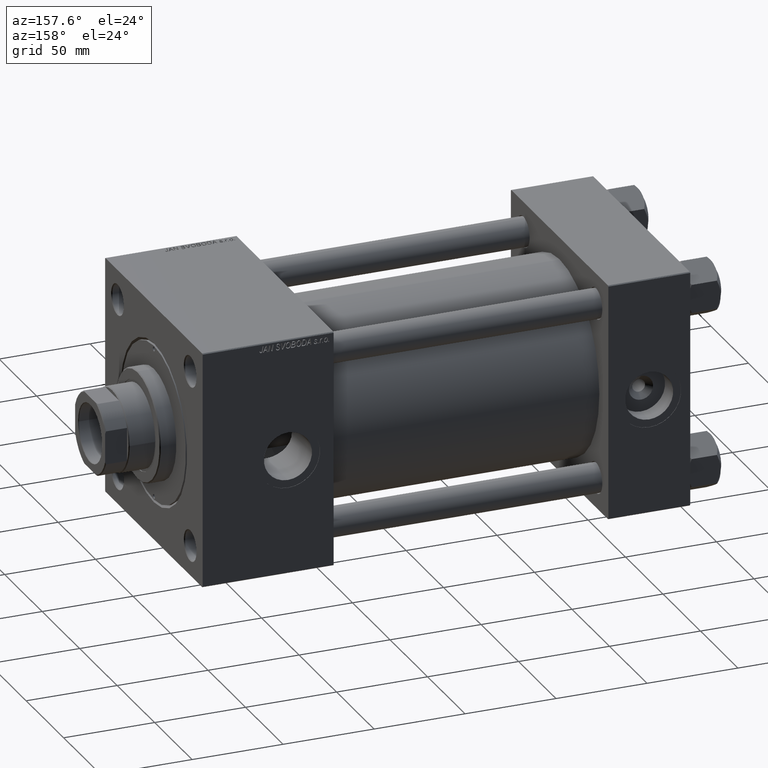
[diagram: clean part render]
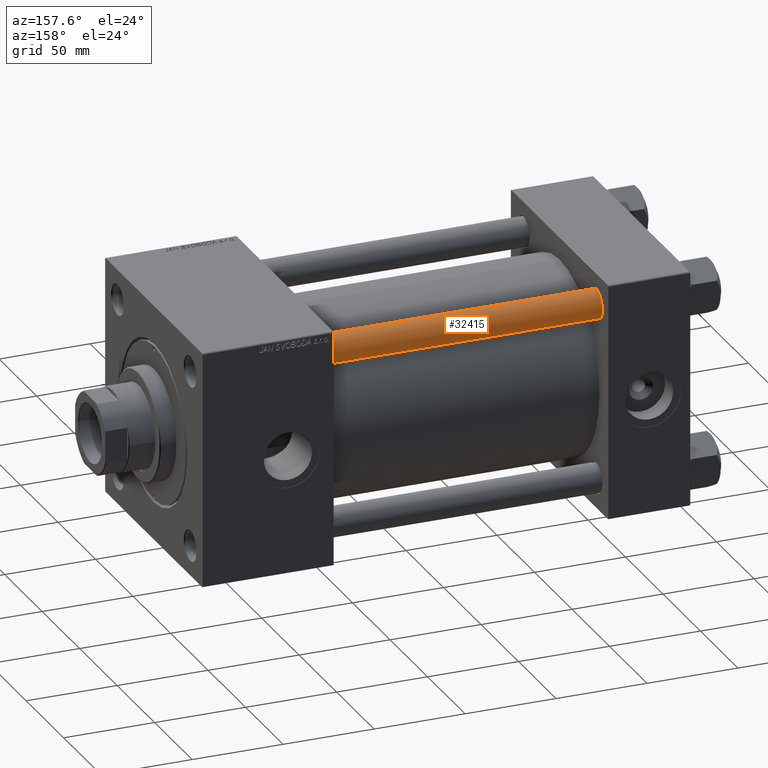
[diagram: same view with one face highlighted and labeled with its STEP entity id]
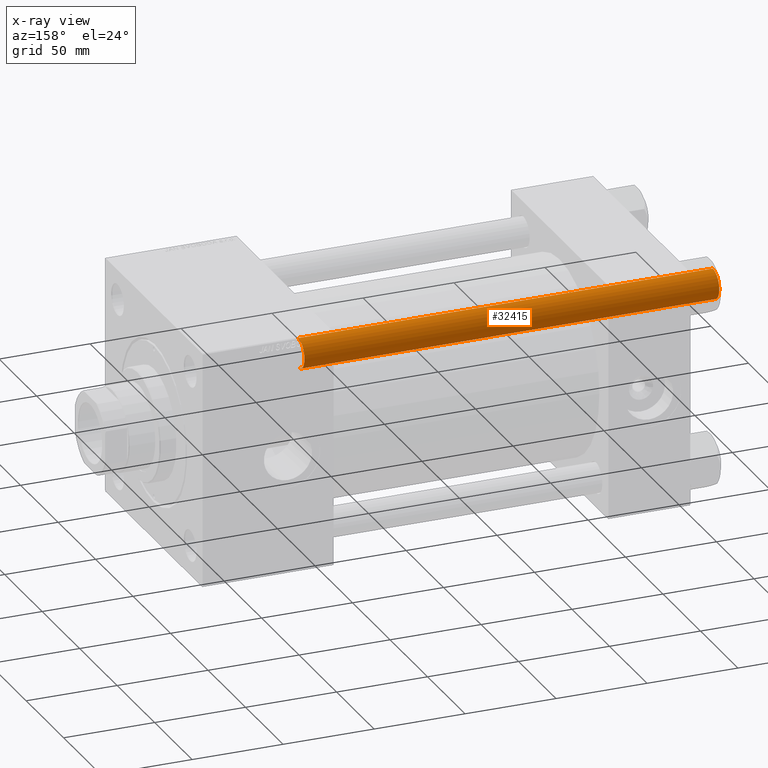
[diagram: x-ray of the same camera — body ghosted, the highlighted face saturated]
A machine part, auxiliary view. The second image highlights one B-rep face of the part: STEP entity #32415.
The next image is the same camera in x-ray: the body ghosted, the highlighted face saturated — about 0% of this face is hidden behind the body in this view.
In plain terms, the highlighted cylindrical surface (edge-blend (fillet) strip) has radius 8 mm, axis along (-1, 0, 0).
Its self-contained STEP definition (entity closure, byte-faithful):
#923 = VERTEX_POINT ( 'NONE', #32813 ) ;
#1011 = DIRECTION ( 'NONE',  ( 1.000000000000000000, 0.000000000000000000, 0.000000000000000000 ) ) ;
#1038 = ORIENTED_EDGE ( 'NONE', *, *, #25030, .T. ) ;
#2077 = CARTESIAN_POINT ( 'NONE',  ( -8.000000000000000000, 0.000000000000000000, 228.5000000000000853 ) ) ;
#4820 = CIRCLE ( 'NONE', #28647, 8.000000000000000000 ) ;
#6441 = CARTESIAN_POINT ( 'NONE',  ( 8.000000000000000000, 9.797174393178823685E-16, 229.0000000000000000 ) ) ;
#8715 = DIRECTION ( 'NONE',  ( -1.000000000000000000, 0.000000000000000000, 0.000000000000000000 ) ) ;
#9704 = EDGE_CURVE ( 'NONE', #21651, #21531, #37259, .T. ) ;
#10947 = ORIENTED_EDGE ( 'NONE', *, *, #9704, .T. ) ;
#11845 = DIRECTION ( 'NONE',  ( 1.000000000000000000, 0.000000000000000000, 0.000000000000000000 ) ) ;
#12145 = VECTOR ( 'NONE', #44498, 1000.000000000000000 ) ;
#15923 = DIRECTION ( 'NONE',  ( -0.000000000000000000, -0.000000000000000000, -1.000000000000000000 ) ) ;
#15974 = AXIS2_PLACEMENT_3D ( 'NONE', #27765, #34450, #11845 ) ;
#16269 = VECTOR ( 'NONE', #42572, 1000.000000000000000 ) ;
#18472 = EDGE_CURVE ( 'NONE', #39342, #21531, #35894, .T. ) ;
#20287 = CARTESIAN_POINT ( 'NONE',  ( 0.000000000000000000, 0.000000000000000000, 229.0000000000000000 ) ) ;
#21412 = AXIS2_PLACEMENT_3D ( 'NONE', #20287, #15923, #8715 ) ;
#21531 = VERTEX_POINT ( 'NONE', #43907 ) ;
#21651 = VERTEX_POINT ( 'NONE', #28243 ) ;
#21879 = LINE ( 'NONE', #6441, #12145 ) ;
#25030 = EDGE_CURVE ( 'NONE', #923, #21651, #21879, .T. ) ;
#26218 = DIRECTION ( 'NONE',  ( 0.000000000000000000, 0.000000000000000000, -1.000000000000000000 ) ) ;
#27198 = ORIENTED_EDGE ( 'NONE', *, *, #18472, .F. ) ;
#27678 = CARTESIAN_POINT ( 'NONE',  ( -8.000000000000000000, 0.000000000000000000, 229.0000000000000000 ) ) ;
#27765 = CARTESIAN_POINT ( 'NONE',  ( 0.000000000000000000, 0.000000000000000000, 0.5000000000001392220 ) ) ;
#28243 = CARTESIAN_POINT ( 'NONE',  ( 8.000000000000000000, 9.797174393178823685E-16, 0.5000000000001392220 ) ) ;
#28264 = EDGE_CURVE ( 'NONE', #39342, #923, #4820, .T. ) ;
#28647 = AXIS2_PLACEMENT_3D ( 'NONE', #30079, #26218, #1011 ) ;
#30079 = CARTESIAN_POINT ( 'NONE',  ( 0.000000000000000000, 0.000000000000000000, 228.5000000000000853 ) ) ;
#31589 = CYLINDRICAL_SURFACE ( 'NONE', #21412, 8.000000000000000000 ) ;
#32415 = ADVANCED_FACE ( 'NONE', ( #50850 ), #31589, .T. ) ;
#32813 = CARTESIAN_POINT ( 'NONE',  ( 8.000000000000000000, 9.797174393178823685E-16, 228.5000000000000853 ) ) ;
#34450 = DIRECTION ( 'NONE',  ( -0.000000000000000000, -0.000000000000000000, 1.000000000000000000 ) ) ;
#35894 = LINE ( 'NONE', #27678, #16269 ) ;
#37259 = CIRCLE ( 'NONE', #15974, 8.000000000000000000 ) ;
#38693 = ORIENTED_EDGE ( 'NONE', *, *, #28264, .T. ) ;
#39342 = VERTEX_POINT ( 'NONE', #2077 ) ;
#40978 = EDGE_LOOP ( 'NONE', ( #38693, #1038, #10947, #27198 ) ) ;
#42572 = DIRECTION ( 'NONE',  ( -0.000000000000000000, -0.000000000000000000, -1.000000000000000000 ) ) ;
#43907 = CARTESIAN_POINT ( 'NONE',  ( -8.000000000000000000, 0.000000000000000000, 0.5000000000001392220 ) ) ;
#44498 = DIRECTION ( 'NONE',  ( -0.000000000000000000, -0.000000000000000000, -1.000000000000000000 ) ) ;
#50850 = FACE_OUTER_BOUND ( 'NONE', #40978, .T. ) ;